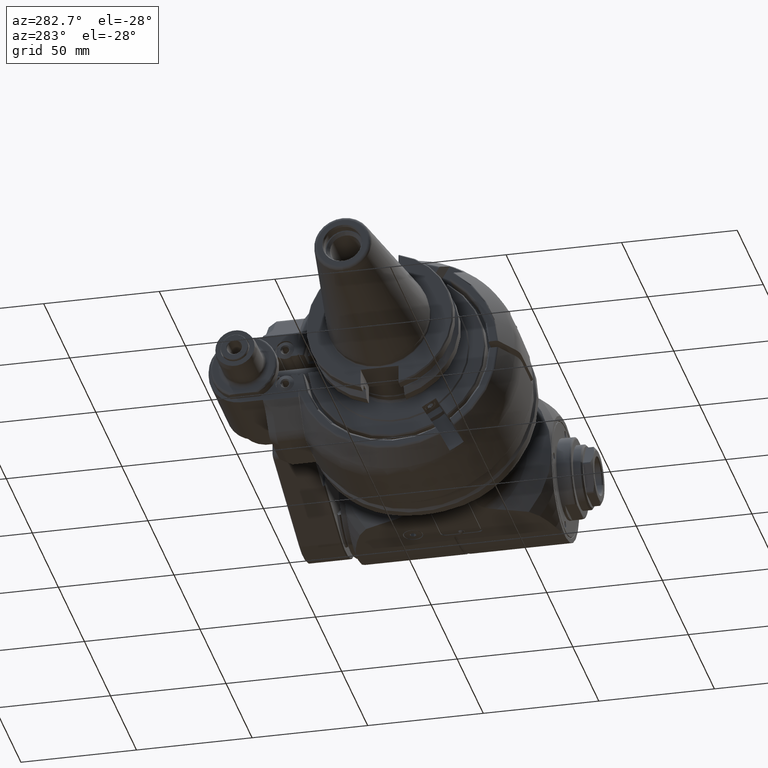
[diagram: clean part render]
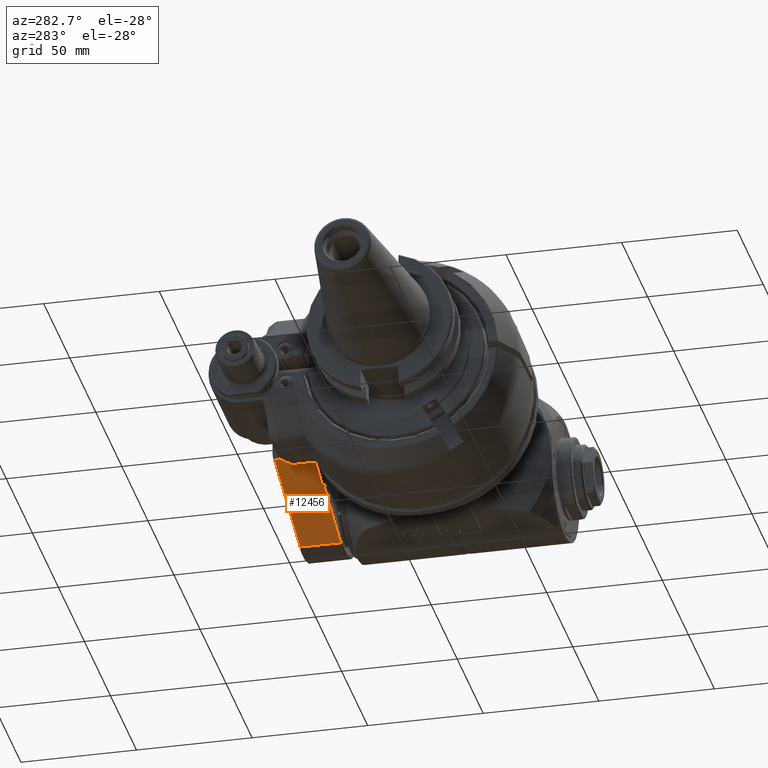
[diagram: same view with one face highlighted and labeled with its STEP entity id]
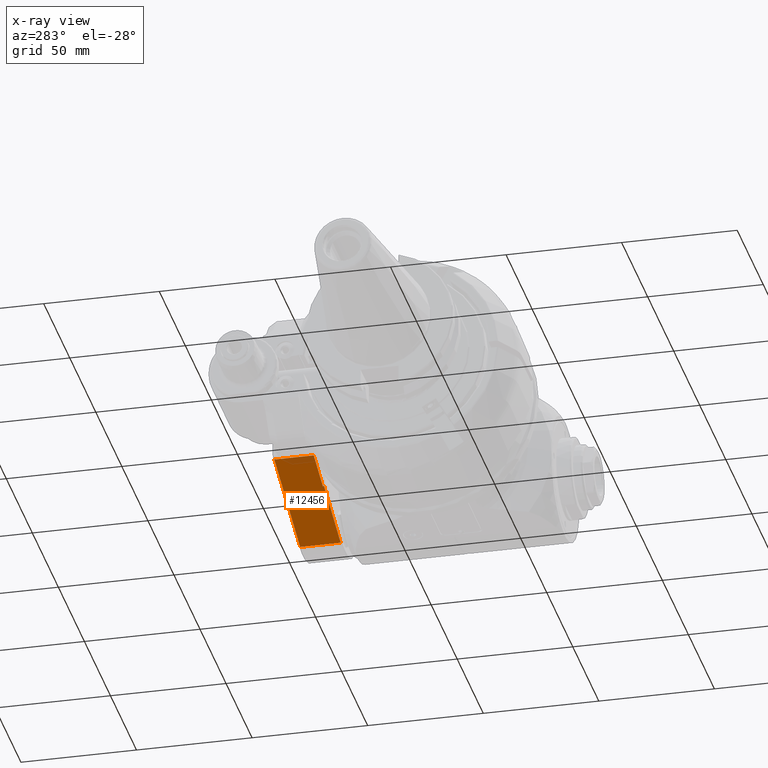
[diagram: x-ray of the same camera — body ghosted, the highlighted face saturated]
A machine part, auxiliary view. The second image highlights one B-rep face of the part: STEP entity #12456.
The next image is the same camera in x-ray: the body ghosted, the highlighted face saturated — about 5% of this face is hidden behind the body in this view.
In plain terms, the highlighted planar face has unit normal (-0.309, -0, -0.9511).
Its self-contained STEP definition (entity closure, byte-faithful):
#1889=FACE_OUTER_BOUND('',#2672,.T.);
#2672=EDGE_LOOP('',(#8502,#8503,#8504,#8505,#8506,#8507));
#3603=LINE('',#19437,#4448);
#3607=LINE('',#19443,#4452);
#3608=LINE('',#19445,#4453);
#3609=LINE('',#19447,#4454);
#3610=LINE('',#19449,#4455);
#3611=LINE('',#19450,#4456);
#4448=VECTOR('',#15399,0.5);
#4452=VECTOR('',#15405,33.734685147821);
#4453=VECTOR('',#15406,18.3238857886305);
#4454=VECTOR('',#15407,17.);
#4455=VECTOR('',#15408,52.0585709364515);
#4456=VECTOR('',#15409,17.5);
#5306=VERTEX_POINT('',#19425);
#5309=VERTEX_POINT('',#19435);
#5310=VERTEX_POINT('',#19436);
#5312=VERTEX_POINT('',#19444);
#5313=VERTEX_POINT('',#19446);
#5314=VERTEX_POINT('',#19448);
#6570=EDGE_CURVE('',#5309,#5310,#3603,.T.);
#6574=EDGE_CURVE('',#5306,#5309,#3607,.T.);
#6575=EDGE_CURVE('',#5312,#5310,#3608,.T.);
#6576=EDGE_CURVE('',#5313,#5312,#3609,.T.);
#6577=EDGE_CURVE('',#5314,#5313,#3610,.T.);
#6578=EDGE_CURVE('',#5306,#5314,#3611,.T.);
#8502=ORIENTED_EDGE('',*,*,#6574,.T.);
#8503=ORIENTED_EDGE('',*,*,#6570,.T.);
#8504=ORIENTED_EDGE('',*,*,#6575,.F.);
#8505=ORIENTED_EDGE('',*,*,#6576,.F.);
#8506=ORIENTED_EDGE('',*,*,#6577,.F.);
#8507=ORIENTED_EDGE('',*,*,#6578,.F.);
#12127=PLANE('',#13691);
#12456=ADVANCED_FACE('',(#1889),#12127,.T.);
#13691=AXIS2_PLACEMENT_3D('',#19442,#15403,#15404);
#15399=DIRECTION('',(0.,1.,0.));
#15403=DIRECTION('center_axis',(-0.309016994374891,0.,-0.951056516295172));
#15404=DIRECTION('ref_axis',(0.951056516295172,0.,-0.309016994374891));
#15405=DIRECTION('',(-0.951056516295172,0.,0.309016994374891));
#15406=DIRECTION('',(0.951056516295172,0.,-0.309016994374891));
#15407=DIRECTION('',(0.,-1.,0.));
#15408=DIRECTION('',(-0.951056516295172,0.,0.309016994374891));
#15409=DIRECTION('',(0.,1.,0.));
#19425=CARTESIAN_POINT('',(82.583592135,50.5,-22.82535639108));
#19435=CARTESIAN_POINT('',(50.5,50.5,-12.40076538052));
#19436=CARTESIAN_POINT('',(50.5,51.,-12.40076538052));
#19437=CARTESIAN_POINT('',(50.5,50.5,-12.40076538052));
#19442=CARTESIAN_POINT('Origin',(31.,50.,-6.064831303977));
#19443=CARTESIAN_POINT('',(82.583592135,50.5,-22.82535639108));
#19444=CARTESIAN_POINT('',(33.07294901688,51.,-6.738373268846));
#19445=CARTESIAN_POINT('',(33.07294901688,51.,-6.738373268846));
#19446=CARTESIAN_POINT('',(33.07294901688,68.,-6.738373268846));
#19447=CARTESIAN_POINT('',(33.07294901688,68.,-6.738373268846));
#19448=CARTESIAN_POINT('',(82.583592135,68.,-22.82535639108));
#19449=CARTESIAN_POINT('',(82.583592135,68.,-22.82535639108));
#19450=CARTESIAN_POINT('',(82.583592135,50.5,-22.82535639108));